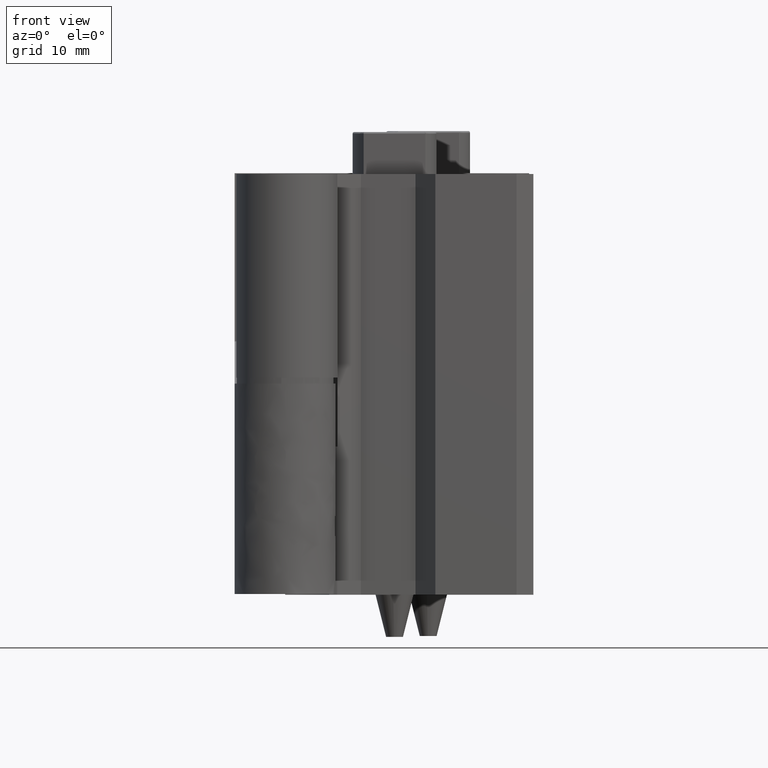
[diagram: clean part render]
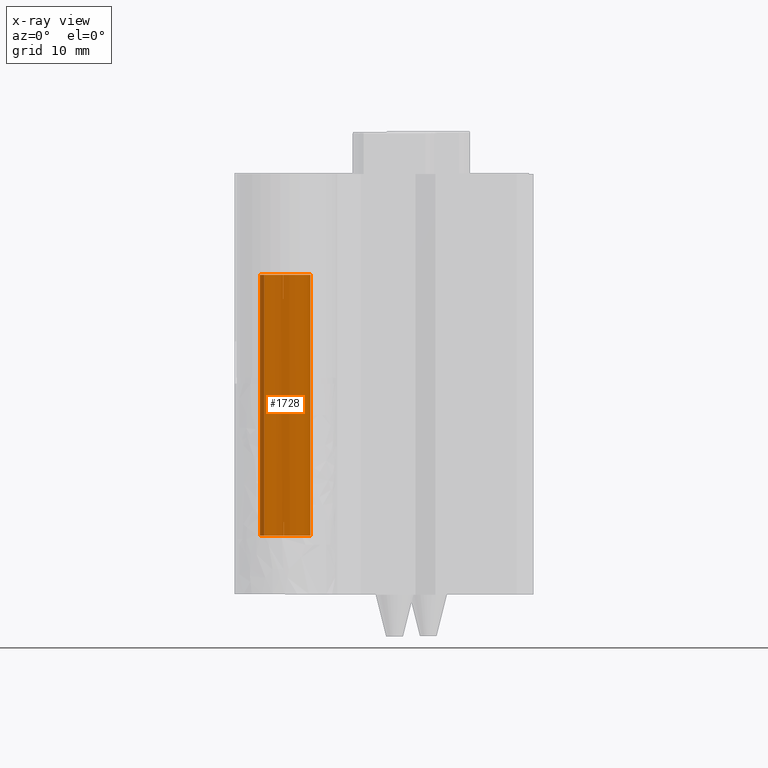
[diagram: x-ray — body ghosted, one internal face saturated and labeled with its STEP entity id]
A machine part, front view, then the same camera in x-ray: the body is ghosted and one INTERNAL B-rep face — a face not visible from any outside direction — is saturated and labeled: STEP entity #1728.
In plain terms, the highlighted face is a freeform B-spline surface patch.
Its self-contained STEP definition (entity closure, byte-faithful):
#1475=CARTESIAN_POINT('',(-0.183145255212205,-2.994404105444908,6.923948666973759));
#1476=VERTEX_POINT('',#1475);
#1482=CARTESIAN_POINT('',(-2.463183580860142,-1.712520833252668,6.923949753978410));
#1483=VERTEX_POINT('',#1482);
#1497=CARTESIAN_POINT('',(-3.000000142492298,0.0,6.923949753978410));
#1498=VERTEX_POINT('',#1497);
#1499=CARTESIAN_POINT('',(-3.000000142492298,0.0,6.923949753978410));
#1500=CARTESIAN_POINT('',(-3.000000142492297,-0.940397209374071,6.923949753978412));
#1501=CARTESIAN_POINT('',(-2.463183580860142,-1.712520833252668,6.923949753978410));
#1509=(BOUNDED_CURVE()B_SPLINE_CURVE(2,(#1499,#1500,#1501),.UNSPECIFIED.,.F.,.U.)B_SPLINE_CURVE_WITH_KNOTS((3,3),(0.500000000000000,0.598090608938974),.UNSPECIFIED.)CURVE()GEOMETRIC_REPRESENTATION_ITEM()RATIONAL_B_SPLINE_CURVE((1.0,0.885079703249969,0.860340221601203))REPRESENTATION_ITEM(''));
#1510=EDGE_CURVE('',#1498,#1483,#1509,.T.);
#1512=CARTESIAN_POINT('',(0.354102827431280,2.979028815288630,6.923949753984029));
#1513=VERTEX_POINT('',#1512);
#1514=CARTESIAN_POINT('',(0.354102827431280,2.979028815288630,6.923949753984029));
#1515=CARTESIAN_POINT('',(0.177672468428034,3.000000237859696,6.923949753978410));
#1516=CARTESIAN_POINT('',(0.000000095367398,3.000000237859695,6.923949753978410));
#1517=CARTESIAN_POINT('',(-3.000000142492297,3.000000237859696,6.923949753978409));
#1518=CARTESIAN_POINT('',(-3.000000142492298,0.0,6.923949753978410));
#1526=(BOUNDED_CURVE()B_SPLINE_CURVE(2,(#1514,#1515,#1516,#1517,#1518),.UNSPECIFIED.,.F.,.U.)B_SPLINE_CURVE_WITH_KNOTS((3,2,3),(0.229562473513637,0.250000000000000,0.500000000000000),.UNSPECIFIED.)CURVE()GEOMETRIC_REPRESENTATION_ITEM()RATIONAL_B_SPLINE_CURVE((0.956026754183952,0.976055948331296,1.0,0.707106781186547,1.0))REPRESENTATION_ITEM(''));
#1527=EDGE_CURVE('',#1513,#1498,#1526,.T.);
#1571=CARTESIAN_POINT('',(3.000000333227093,0.0,6.923949753978410));
#1572=VERTEX_POINT('',#1571);
#1573=CARTESIAN_POINT('',(3.000000333227093,0.0,6.923949753978410));
#1574=CARTESIAN_POINT('',(3.000000333227093,2.664523789083158,6.923949753978409));
#1575=CARTESIAN_POINT('',(0.354102827431280,2.979028815288630,6.923949753984029));
#1583=(BOUNDED_CURVE()B_SPLINE_CURVE(2,(#1573,#1574,#1575),.UNSPECIFIED.,.F.,.U.)B_SPLINE_CURVE_WITH_KNOTS((3,3),(0.0,0.229562473513637),.UNSPECIFIED.)CURVE()GEOMETRIC_REPRESENTATION_ITEM()RATIONAL_B_SPLINE_CURVE((1.0,0.731050832855251,0.956026754183952))REPRESENTATION_ITEM(''));
#1584=EDGE_CURVE('',#1572,#1513,#1583,.T.);
#1586=CARTESIAN_POINT('',(-0.183145255212204,-2.994404105444908,6.923948666973760));
#1587=CARTESIAN_POINT('',(-0.091658044059889,-2.999999703166965,6.923948682594631));
#1588=CARTESIAN_POINT('',(0.000000127563692,-2.999999711454218,6.923948699200105));
#1589=CARTESIAN_POINT('',(3.000000348833399,-2.999999982698516,6.923949242702430));
#1590=CARTESIAN_POINT('',(3.000000333227093,0.0,6.923949753978410));
#1598=(BOUNDED_CURVE()B_SPLINE_CURVE(2,(#1586,#1587,#1588,#1589,#1590),.UNSPECIFIED.,.F.,.U.)B_SPLINE_CURVE_WITH_KNOTS((3,2,3),(0.739332976611202,0.750000000000000,1.0),.UNSPECIFIED.)CURVE()GEOMETRIC_REPRESENTATION_ITEM()RATIONAL_B_SPLINE_CURVE((0.976072072469206,0.987502804737986,1.0,0.707106781186547,1.0))REPRESENTATION_ITEM(''));
#1599=EDGE_CURVE('',#1476,#1572,#1598,.T.);
#1620=CARTESIAN_POINT('',(-2.463183580861533,-1.712520833250666,38.698949364499931));
#1621=CARTESIAN_POINT('',(-3.074818223533202,-0.832783525304906,38.698949364499917));
#1622=CARTESIAN_POINT('',(-2.990752142958439,0.235377305845793,38.698949364499931));
#1623=CARTESIAN_POINT('',(-2.755374837112645,3.226129544171630,38.698949364499938));
#1624=CARTESIAN_POINT('',(0.235377401213191,2.990752238325836,38.698949364499931));
#1625=CARTESIAN_POINT('',(3.226129639539026,2.755374932480043,38.698949364499938));
#1626=CARTESIAN_POINT('',(2.990752333693234,-0.235377305845793,38.698949364499931));
#1627=CARTESIAN_POINT('',(2.755375027847440,-3.226129544171630,38.698949364499938));
#1628=CARTESIAN_POINT('',(-0.235377210478396,-2.990752238325836,38.698949364499931));
#1629=CARTESIAN_POINT('',(-2.463183580861533,-1.712520833250666,6.129574763715368));
#1630=CARTESIAN_POINT('',(-3.074818223533202,-0.832783525304906,6.129574763715368));
#1631=CARTESIAN_POINT('',(-2.990752142958439,0.235377305845793,6.129574763715368));
#1632=CARTESIAN_POINT('',(-2.755374837112645,3.226129544171630,6.129574763715368));
#1633=CARTESIAN_POINT('',(0.235377401213191,2.990752238325836,6.129574763715368));
#1634=CARTESIAN_POINT('',(3.226129639539026,2.755374932480043,6.129574763715368));
#1635=CARTESIAN_POINT('',(2.990752333693234,-0.235377305845793,6.129574763715368));
#1636=CARTESIAN_POINT('',(2.755375027847440,-3.226129544171630,6.129574763715368));
#1637=CARTESIAN_POINT('',(-0.235377210478396,-2.990752238325836,6.129574763715368));
#1645=(BOUNDED_SURFACE()B_SPLINE_SURFACE(2,1,((#1620,#1629),(#1621,#1630),(#1622,#1631),(#1623,#1632),(#1624,#1633),(#1625,#1634),(#1626,#1635),(#1627,#1636),(#1628,#1637)),.UNSPECIFIED.,.F.,.F.,.U.)B_SPLINE_SURFACE_WITH_KNOTS((3,2,2,2,3),(2,2),(0.0,2.187047782733433,7.157610925309418,12.128174067885400,17.098737210461390),(0.0,32.569374600784570),.UNSPECIFIED.)GEOMETRIC_REPRESENTATION_ITEM()RATIONAL_B_SPLINE_SURFACE(((0.855662221768731,0.855662221768731),(0.871126983722081,0.871126983722081),(1.0,1.0),(0.707106781186548,0.707106781186548),(1.0,1.0),(0.707106781186548,0.707106781186548),(1.0,1.0),(0.707106781186548,0.707106781186548),(1.0,1.0)))REPRESENTATION_ITEM('')SURFACE());
#1646=ORIENTED_EDGE('',*,*,#1510,.T.);
#1647=CARTESIAN_POINT('',(-2.463183580860142,-1.712520833252668,37.923949373999413));
#1648=VERTEX_POINT('',#1647);
#1649=CARTESIAN_POINT('',(-2.463183580860142,-1.712520833252668,37.923949373999413));
#1650=CARTESIAN_POINT('',(-2.463183580860142,-1.712520833252668,6.923949753978410));
#1651=QUASI_UNIFORM_CURVE('',1,(#1649,#1650),.UNSPECIFIED.,.F.,.U.);
#1652=EDGE_CURVE('',#1648,#1483,#1651,.T.);
#1653=ORIENTED_EDGE('',*,*,#1652,.F.);
#1654=CARTESIAN_POINT('',(-3.000000142492298,0.0,37.923949373999399));
#1655=VERTEX_POINT('',#1654);
#1656=CARTESIAN_POINT('',(-3.000000142492298,0.0,37.923949373999399));
#1657=CARTESIAN_POINT('',(-3.000000142492297,-0.940397209374071,37.923949373999392));
#1658=CARTESIAN_POINT('',(-2.463183580860142,-1.712520833252668,37.923949373999413));
#1666=(BOUNDED_CURVE()B_SPLINE_CURVE(2,(#1656,#1657,#1658),.UNSPECIFIED.,.F.,.U.)B_SPLINE_CURVE_WITH_KNOTS((3,3),(0.500000000000000,0.598090608938974),.UNSPECIFIED.)CURVE()GEOMETRIC_REPRESENTATION_ITEM()RATIONAL_B_SPLINE_CURVE((1.0,0.885079703249969,0.860340221601203))REPRESENTATION_ITEM(''));
#1667=EDGE_CURVE('',#1655,#1648,#1666,.T.);
#1668=ORIENTED_EDGE('',*,*,#1667,.F.);
#1669=CARTESIAN_POINT('',(0.235377439268535,2.990752242156392,37.923949360390331));
#1670=VERTEX_POINT('',#1669);
#1671=CARTESIAN_POINT('',(0.235377439268535,2.990752242156392,37.923949360390331));
#1672=CARTESIAN_POINT('',(0.117870463431533,3.000000237859696,37.923949373999399));
#1673=CARTESIAN_POINT('',(0.000000095367398,3.000000237859695,37.923949373999399));
#1674=CARTESIAN_POINT('',(-3.000000142492297,3.000000237859696,37.923949373999406));
#1675=CARTESIAN_POINT('',(-3.000000142492298,0.0,37.923949373999399));
#1683=(BOUNDED_CURVE()B_SPLINE_CURVE(2,(#1671,#1672,#1673,#1674,#1675),.UNSPECIFIED.,.F.,.U.)B_SPLINE_CURVE_WITH_KNOTS((3,2,3),(0.236331296331442,0.250000000000000,0.500000000000000),.UNSPECIFIED.)CURVE()GEOMETRIC_REPRESENTATION_ITEM()RATIONAL_B_SPLINE_CURVE((0.969723347195279,0.983986117542035,1.0,0.707106781186547,1.0))REPRESENTATION_ITEM(''));
#1684=EDGE_CURVE('',#1670,#1655,#1683,.T.);
#1685=ORIENTED_EDGE('',*,*,#1684,.F.);
#1686=CARTESIAN_POINT('',(3.000000333227093,0.0,37.923949373999399));
#1687=VERTEX_POINT('',#1686);
#1688=CARTESIAN_POINT('',(3.000000333227093,0.0,37.923949373999399));
#1689=CARTESIAN_POINT('',(3.000000333227094,2.773171625051216,37.923949373999392));
#1690=CARTESIAN_POINT('',(0.235377439268535,2.990752242156392,37.923949360390338));
#1698=(BOUNDED_CURVE()B_SPLINE_CURVE(2,(#1688,#1689,#1690),.UNSPECIFIED.,.F.,.U.)B_SPLINE_CURVE_WITH_KNOTS((3,3),(0.0,0.236331296331442),.UNSPECIFIED.)CURVE()GEOMETRIC_REPRESENTATION_ITEM()RATIONAL_B_SPLINE_CURVE((1.0,0.723120663644512,0.969723347195279))REPRESENTATION_ITEM(''));
#1699=EDGE_CURVE('',#1687,#1670,#1698,.T.);
#1700=ORIENTED_EDGE('',*,*,#1699,.F.);
#1701=CARTESIAN_POINT('',(-0.235377229506068,-2.990752240241115,37.923949360390317));
#1702=VERTEX_POINT('',#1701);
#1703=CARTESIAN_POINT('',(-0.235377229506068,-2.990752240241115,37.923949360390324));
#1704=CARTESIAN_POINT('',(-0.117870272696737,-3.000000237859695,37.923949373999413));
#1705=CARTESIAN_POINT('',(0.000000095367398,-3.000000237859695,37.923949373999399));
#1706=CARTESIAN_POINT('',(3.000000333227092,-3.000000237859696,37.923949373999406));
#1707=CARTESIAN_POINT('',(3.000000333227093,0.0,37.923949373999399));
#1715=(BOUNDED_CURVE()B_SPLINE_CURVE(2,(#1703,#1704,#1705,#1706,#1707),.UNSPECIFIED.,.F.,.U.)B_SPLINE_CURVE_WITH_KNOTS((3,2,3),(0.736331296331442,0.750000000000000,1.0),.UNSPECIFIED.)CURVE()GEOMETRIC_REPRESENTATION_ITEM()RATIONAL_B_SPLINE_CURVE((0.969723347195279,0.983986117542035,1.0,0.707106781186547,1.0))REPRESENTATION_ITEM(''));
#1716=EDGE_CURVE('',#1702,#1687,#1715,.T.);
#1717=ORIENTED_EDGE('',*,*,#1716,.F.);
#1718=CARTESIAN_POINT('',(-0.235377229506068,-2.990752240241115,37.923949360390317));
#1719=CARTESIAN_POINT('',(-0.183145255212205,-2.994404105444908,6.923948666973759));
#1720=QUASI_UNIFORM_CURVE('',1,(#1718,#1719),.UNSPECIFIED.,.F.,.U.);
#1721=EDGE_CURVE('',#1702,#1476,#1720,.T.);
#1722=ORIENTED_EDGE('',*,*,#1721,.T.);
#1723=ORIENTED_EDGE('',*,*,#1599,.T.);
#1724=ORIENTED_EDGE('',*,*,#1584,.T.);
#1725=ORIENTED_EDGE('',*,*,#1527,.T.);
#1726=EDGE_LOOP('',(#1646,#1653,#1668,#1685,#1700,#1717,#1722,#1723,#1724,#1725));
#1727=FACE_OUTER_BOUND('',#1726,.T.);
#1728=ADVANCED_FACE('',(#1727),#1645,.T.);